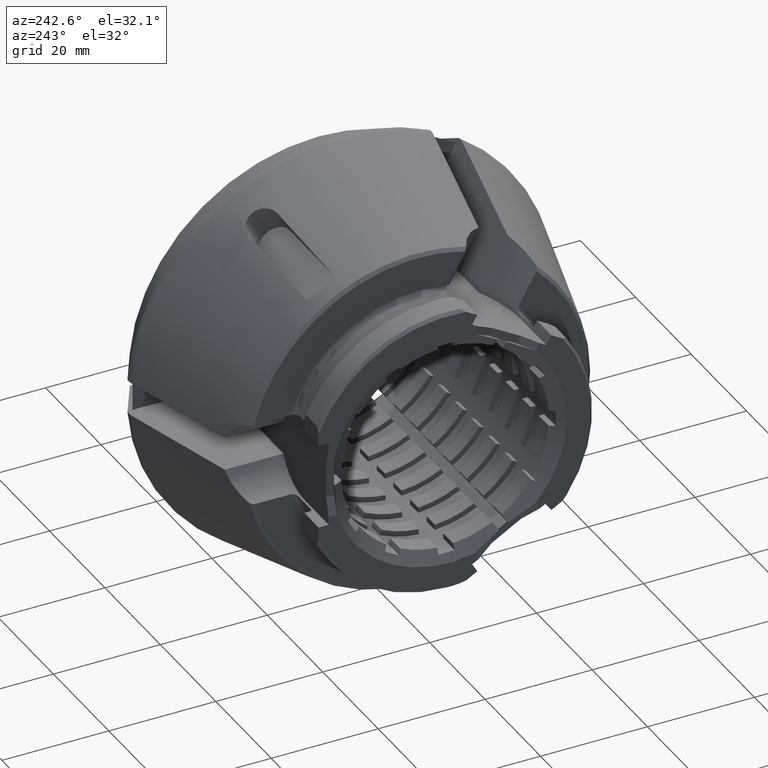
[diagram: clean part render]
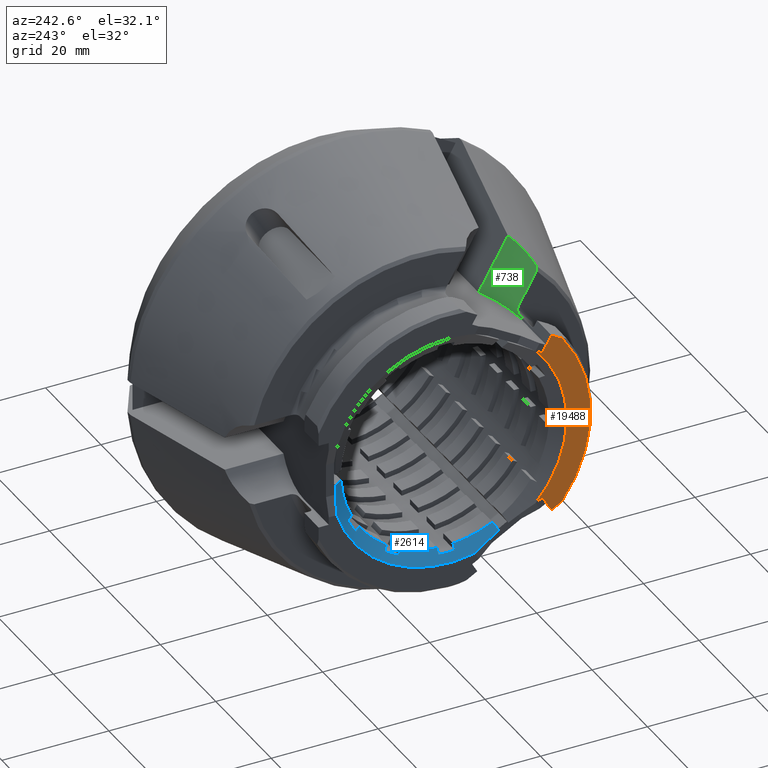
[diagram: same view with three faces highlighted in distinct colors, each labeled with its STEP entity id]
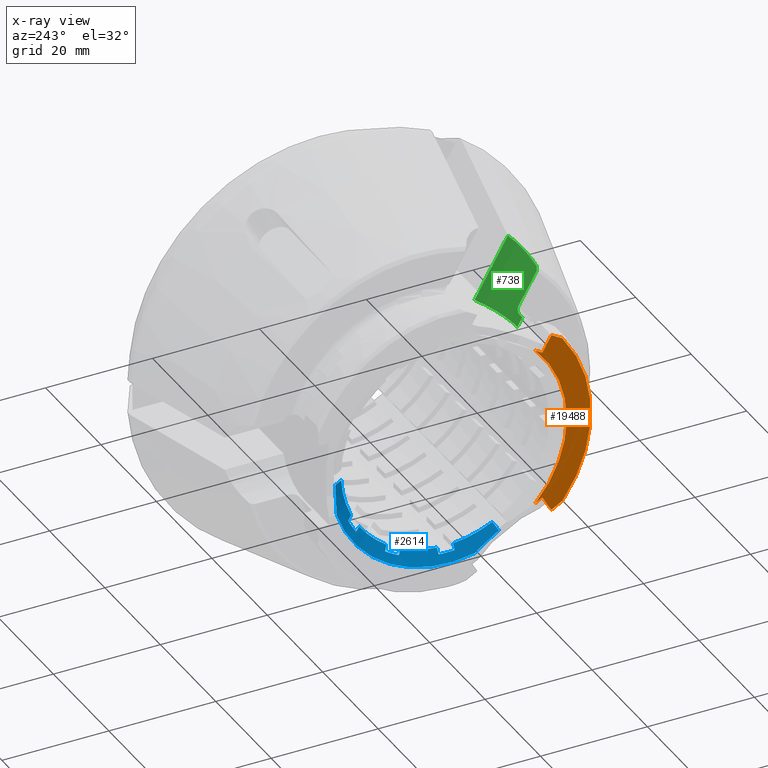
[diagram: x-ray of the same camera — body ghosted, the three highlighted faces saturated]
A machine part, auxiliary view with three faces highlighted in distinct colors.
The next image is the same camera in x-ray (body ghosted, the three faces saturated) — at least one of them is partly hidden behind the body in this view.
Their STEP definitions:

[orange] entity #19488 — the highlighted planar face has unit normal (-1, 0, 0).
#602 = EDGE_LOOP ( 'NONE', ( #12295, #10780, #12441, #12479, #12593, #2593, #10757, #11552 ) ) ;
#764 = CARTESIAN_POINT ( 'NONE',  ( -46.99999999999998600, -16.17890834580003900, -14.90781421732242000 ) ) ;
#869 = VECTOR ( 'NONE', #7783, 999.9999999999998900 ) ;
#1561 = AXIS2_PLACEMENT_3D ( 'NONE', #6029, #6014, #5994 ) ;
#1598 = VERTEX_POINT ( 'NONE', #17869 ) ;
#2081 = LINE ( 'NONE', #5327, #18268 ) ;
#2537 = PLANE ( 'NONE',  #17700 ) ;
#2593 = ORIENTED_EDGE ( 'NONE', *, *, #14526, .T. ) ;
#2817 = VERTEX_POINT ( 'NONE', #9530 ) ;
#2963 = LINE ( 'NONE', #18028, #6544 ) ;
#3525 = LINE ( 'NONE', #5955, #8055 ) ;
#3755 = CARTESIAN_POINT ( 'NONE',  ( -47.00000000000000000, 26.49999999999999300, 0.0000000000000000000 ) ) ;
#4096 = DIRECTION ( 'NONE',  ( 0.0000000000000000000, 0.0000000000000000000, 1.000000000000000000 ) ) ;
#5309 = DIRECTION ( 'NONE',  ( 0.0000000000000000000, 0.4999999999999920100, 0.8660254037844432600 ) ) ;
#5327 = CARTESIAN_POINT ( 'NONE',  ( -46.99999999999998600, -34.00965686030154000, -42.90645363002669700 ) ) ;
#5871 = DIRECTION ( 'NONE',  ( 0.0000000000000000000, 0.8660254037844432600, -0.4999999999999919500 ) ) ;
#5955 = CARTESIAN_POINT ( 'NONE',  ( -46.99999999999998600, -17.42820323027537600, -14.18653347947337600 ) ) ;
#5994 = DIRECTION ( 'NONE',  ( 0.0000000000000000000, 0.0000000000000000000, -1.000000000000000000 ) ) ;
#6014 = DIRECTION ( 'NONE',  ( 1.000000000000000000, -0.0000000000000000000, -0.0000000000000000000 ) ) ;
#6029 = CARTESIAN_POINT ( 'NONE',  ( -47.00000000000000000, 0.0000000000000000000, 0.0000000000000000000 ) ) ;
#6038 = CIRCLE ( 'NONE', #11858, 26.49999999999999300 ) ;
#6544 = VECTOR ( 'NONE', #17836, 999.9999999999998900 ) ;
#7529 = FACE_OUTER_BOUND ( 'NONE', #602, .T. ) ;
#7572 = CARTESIAN_POINT ( 'NONE',  ( -46.99999999999998600, -3.571796769724595100, 22.18653347947319400 ) ) ;
#7622 = EDGE_CURVE ( 'NONE', #16604, #15740, #2963, .T. ) ;
#7783 = DIRECTION ( 'NONE',  ( 0.0000000000000000000, -0.8660254037844363800, -0.5000000000000040000 ) ) ;
#8055 = VECTOR ( 'NONE', #5871, 1000.000000000000000 ) ;
#8366 = DIRECTION ( 'NONE',  ( 0.0000000000000000000, 0.5000000000000040000, -0.8660254037844363800 ) ) ;
#8413 = CARTESIAN_POINT ( 'NONE',  ( -46.99999999999998600, -34.00965686030223600, 42.90645363002640500 ) ) ;
#8656 = EDGE_CURVE ( 'NONE', #15740, #12825, #6038, .T. ) ;
#8728 = DIRECTION ( 'NONE',  ( 0.0000000000000000000, 0.0000000000000000000, -1.000000000000000000 ) ) ;
#8766 = DIRECTION ( 'NONE',  ( 1.000000000000000000, -0.0000000000000000000, -0.0000000000000000000 ) ) ;
#8786 = CARTESIAN_POINT ( 'NONE',  ( -46.99999999999999300, 0.0000000000000000000, 0.0000000000000000000 ) ) ;
#9010 = LINE ( 'NONE', #7572, #869 ) ;
#9530 = CARTESIAN_POINT ( 'NONE',  ( -46.99999999999998600, -17.42820323027537600, -14.18653347947337600 ) ) ;
#9570 = CARTESIAN_POINT ( 'NONE',  ( -47.00000000000000000, -21.15363054855407700, 15.96163884490810100 ) ) ;
#9757 = EDGE_CURVE ( 'NONE', #12825, #10372, #18567, .T. ) ;
#10372 = VERTEX_POINT ( 'NONE', #12932 ) ;
#10757 = ORIENTED_EDGE ( 'NONE', *, *, #14545, .F. ) ;
#10780 = ORIENTED_EDGE ( 'NONE', *, *, #8656, .F. ) ;
#11552 = ORIENTED_EDGE ( 'NONE', *, *, #14614, .F. ) ;
#11858 = AXIS2_PLACEMENT_3D ( 'NONE', #8786, #8766, #8728 ) ;
#12295 = ORIENTED_EDGE ( 'NONE', *, *, #9757, .F. ) ;
#12441 = ORIENTED_EDGE ( 'NONE', *, *, #7622, .F. ) ;
#12479 = ORIENTED_EDGE ( 'NONE', *, *, #14287, .T. ) ;
#12593 = ORIENTED_EDGE ( 'NONE', *, *, #14373, .F. ) ;
#12825 = VERTEX_POINT ( 'NONE', #16719 ) ;
#12932 = CARTESIAN_POINT ( 'NONE',  ( -46.99999999999998600, -19.12820323027535000, -17.13101985234048600 ) ) ;
#12976 = CARTESIAN_POINT ( 'NONE',  ( -47.00000000000000000, -19.12820323027559900, 17.13101985234021600 ) ) ;
#13224 = DIRECTION ( 'NONE',  ( -1.000000000000000000, 0.0000000000000000000, 0.0000000000000000000 ) ) ;
#14048 = VECTOR ( 'NONE', #8366, 999.9999999999998900 ) ;
#14128 = VECTOR ( 'NONE', #18995, 1000.000000000000000 ) ;
#14287 = EDGE_CURVE ( 'NONE', #16604, #16191, #18502, .T. ) ;
#14373 = EDGE_CURVE ( 'NONE', #1598, #16191, #9010, .T. ) ;
#14526 = EDGE_CURVE ( 'NONE', #1598, #15891, #19142, .T. ) ;
#14545 = EDGE_CURVE ( 'NONE', #2817, #15891, #3525, .T. ) ;
#14614 = EDGE_CURVE ( 'NONE', #10372, #2817, #2081, .T. ) ;
#15740 = VERTEX_POINT ( 'NONE', #9570 ) ;
#15891 = VERTEX_POINT ( 'NONE', #764 ) ;
#16191 = VERTEX_POINT ( 'NONE', #17522 ) ;
#16604 = VERTEX_POINT ( 'NONE', #12976 ) ;
#16719 = CARTESIAN_POINT ( 'NONE',  ( -47.00000000000000000, -21.15363054855386700, -15.96163884490838400 ) ) ;
#17522 = CARTESIAN_POINT ( 'NONE',  ( -46.99999999999998600, -17.42820323027557100, 14.18653347947313200 ) ) ;
#17700 = AXIS2_PLACEMENT_3D ( 'NONE', #3755, #13224, #4096 ) ;
#17836 = DIRECTION ( 'NONE',  ( 0.0000000000000000000, -0.8660254037844363800, -0.5000000000000040000 ) ) ;
#17869 = CARTESIAN_POINT ( 'NONE',  ( -46.99999999999998600, -16.17890834580025200, 14.90781421732218700 ) ) ;
#18028 = CARTESIAN_POINT ( 'NONE',  ( -47.00000000000000000, -2.188506604906676600, 26.91115825898766200 ) ) ;
#18268 = VECTOR ( 'NONE', #5309, 1000.000000000000100 ) ;
#18502 = LINE ( 'NONE', #8413, #14048 ) ;
#18567 = LINE ( 'NONE', #18980, #14128 ) ;
#18980 = CARTESIAN_POINT ( 'NONE',  ( -47.00000000000000000, -22.21149339509331000, -15.35088144569314600 ) ) ;
#18995 = DIRECTION ( 'NONE',  ( 0.0000000000000000000, 0.8660254037844432600, -0.4999999999999919500 ) ) ;
#19142 = CIRCLE ( 'NONE', #1561, 21.99999999999999300 ) ;
#19488 = ADVANCED_FACE ( 'NONE', ( #7529 ), #2537, .T. ) ;

[blue] entity #2614 — the highlighted conical surface has half-angle 60 deg.
#455 = CARTESIAN_POINT ( 'NONE',  ( -46.43638838185032100, -9.633974596215592700, -18.68653347947319800 ) ) ;
#505 = ORIENTED_EDGE ( 'NONE', *, *, #9176, .T. ) ;
#610 = CARTESIAN_POINT ( 'NONE',  ( -46.10222033141014500, 0.0000000000000000000, -20.44499999999999700 ) ) ;
#670 = VERTEX_POINT ( 'NONE', #12581 ) ;
#1064 = ORIENTED_EDGE ( 'NONE', *, *, #10730, .F. ) ;
#1116 = CARTESIAN_POINT ( 'NONE',  ( -45.52487006222052200, 16.03968489132538600, -10.99256719729237200 ) ) ;
#1168 = B_SPLINE_CURVE_WITH_KNOTS ( 'NONE', 3,
 ( #6431, #6402, #6123, #6103, #6085, #6062, #6037 ),
 .UNSPECIFIED., .F., .F.,
 ( 4, 3, 4 ),
 ( 0.002509571420992501200, 0.003437399244691651800, 0.003666733965419723900 ),
 .UNSPECIFIED. ) ;
#1182 = CARTESIAN_POINT ( 'NONE',  ( -45.71729899592697400, 16.32919095618764900, -11.15971360177263000 ) ) ;
#1275 = CARTESIAN_POINT ( 'NONE',  ( -45.90975012257960900, 16.61868595826436800, -11.32685361915067700 ) ) ;
#1279 = CARTESIAN_POINT ( 'NONE',  ( -46.10222033141014500, 16.90817144412183700, -11.49398814233697600 ) ) ;
#1507 = CARTESIAN_POINT ( 'NONE',  ( -46.10222033141014500, 11.49398814233696300, -16.90817144412184100 ) ) ;
#1530 = CARTESIAN_POINT ( 'NONE',  ( -45.90975012257960900, 11.32685361915066700, -16.61868595826437600 ) ) ;
#1686 = CARTESIAN_POINT ( 'NONE',  ( -45.52487006222052200, 10.99256719729236300, -16.03968489132539300 ) ) ;
#1700 = CARTESIAN_POINT ( 'NONE',  ( -45.52487006222052200, 17.53968489132539000, -8.394490985939056000 ) ) ;
#1706 = AXIS2_PLACEMENT_3D ( 'NONE', #7340, #7338, #7319 ) ;
#1956 = CARTESIAN_POINT ( 'NONE',  ( -45.71729899592697400, 11.15971360177261900, -16.32919095618765600 ) ) ;
#2054 = ORIENTED_EDGE ( 'NONE', *, *, #11976, .F. ) ;
#2166 = CARTESIAN_POINT ( 'NONE',  ( -46.43638838185032800, 21.00000000000001100, -1.000000000000000000 ) ) ;
#2198 = CIRCLE ( 'NONE', #14265, 19.44499999999999300 ) ;
#2512 = ORIENTED_EDGE ( 'NONE', *, *, #10656, .F. ) ;
#2528 = ORIENTED_EDGE ( 'NONE', *, *, #14385, .F. ) ;
#2605 = ORIENTED_EDGE ( 'NONE', *, *, #10600, .F. ) ;
#2614 = ADVANCED_FACE ( 'NONE', ( #17809 ), #17568, .F. ) ;
#2954 = CARTESIAN_POINT ( 'NONE',  ( -46.10222033141014500, 18.40817144412183400, -8.895911930983656300 ) ) ;
#3383 = ORIENTED_EDGE ( 'NONE', *, *, #11105, .F. ) ;
#3486 = CARTESIAN_POINT ( 'NONE',  ( -45.52487006222052200, 8.394490985939045300, -17.53968489132539300 ) ) ;
#3505 = CARTESIAN_POINT ( 'NONE',  ( -45.71729899592697400, 8.561637390419301500, -17.82919095618765200 ) ) ;
#3631 = B_SPLINE_CURVE_WITH_KNOTS ( 'NONE', 3,
 ( #3801, #3868, #3505, #3486 ),
 .UNSPECIFIED., .F., .F.,
 ( 4, 4 ),
 ( 2.664871811173115700E-007, 0.001157429047001911000 ),
 .UNSPECIFIED. ) ;
#3801 = CARTESIAN_POINT ( 'NONE',  ( -46.10222033141014500, 8.895911930983647400, -18.40817144412184400 ) ) ;
#3868 = CARTESIAN_POINT ( 'NONE',  ( -45.90975012257960900, 8.728777407797348800, -18.11868595826437600 ) ) ;
#3890 = B_SPLINE_CURVE_WITH_KNOTS ( 'NONE', 3,
 ( #1686, #1956, #1530, #1507 ),
 .UNSPECIFIED., .F., .F.,
 ( 4, 4 ),
 ( 2.664682339458158100E-007, 0.001157429028054731000 ),
 .UNSPECIFIED. ) ;
#3944 = EDGE_CURVE ( 'NONE', #16912, #670, #10298, .T. ) ;
#4059 = ORIENTED_EDGE ( 'NONE', *, *, #10811, .F. ) ;
#4146 = ORIENTED_EDGE ( 'NONE', *, *, #10916, .F. ) ;
#4279 = VERTEX_POINT ( 'NONE', #9949 ) ;
#4320 = VERTEX_POINT ( 'NONE', #9500 ) ;
#4403 = EDGE_CURVE ( 'NONE', #4320, #10015, #7740, .T. ) ;
#4558 = ORIENTED_EDGE ( 'NONE', *, *, #10488, .F. ) ;
#4809 = EDGE_CURVE ( 'NONE', #16100, #7697, #5497, .T. ) ;
#4976 = CIRCLE ( 'NONE', #1706, 20.44499999999999700 ) ;
#5158 = VERTEX_POINT ( 'NONE', #16266 ) ;
#5442 = ORIENTED_EDGE ( 'NONE', *, *, #3944, .T. ) ;
#5497 = CIRCLE ( 'NONE', #10083, 19.44499999999999300 ) ;
#5702 = ORIENTED_EDGE ( 'NONE', *, *, #7307, .F. ) ;
#5708 = ORIENTED_EDGE ( 'NONE', *, *, #10429, .F. ) ;
#6037 = CARTESIAN_POINT ( 'NONE',  ( -46.10222033141014500, 1.500000000000007100, -20.38990007332061100 ) ) ;
#6062 = CARTESIAN_POINT ( 'NONE',  ( -46.06407521336202400, 1.500000000000000400, -20.32365225080725000 ) ) ;
#6085 = CARTESIAN_POINT ( 'NONE',  ( -46.02593084676011200, 1.500000000000000400, -20.25740399560944000 ) ) ;
#6103 = CARTESIAN_POINT ( 'NONE',  ( -45.98778725393737000, 1.500000000000000400, -20.19115529490339600 ) ) ;
#6123 = CARTESIAN_POINT ( 'NONE',  ( -45.83346833375820500, 1.500000000000000200, -19.92313051800998700 ) ) ;
#6232 = AXIS2_PLACEMENT_3D ( 'NONE', #8465, #8461, #8434 ) ;
#6402 = CARTESIAN_POINT ( 'NONE',  ( -45.67916205813366300, 1.500000000000000200, -19.65509846033761200 ) ) ;
#6431 = CARTESIAN_POINT ( 'NONE',  ( -45.52487006222052200, 1.500000000000000000, -19.38705818323141400 ) ) ;
#6437 = CIRCLE ( 'NONE', #10243, 20.44499999999999700 ) ;
#6450 = CARTESIAN_POINT ( 'NONE',  ( -47.00000000000000000, 0.0000000000000000000, 0.0000000000000000000 ) ) ;
#6462 = VERTEX_POINT ( 'NONE', #455 ) ;
#6941 = DIRECTION ( 'NONE',  ( 0.0000000000000000000, 0.0000000000000000000, 1.000000000000000000 ) ) ;
#6961 = DIRECTION ( 'NONE',  ( -1.000000000000000000, 0.0000000000000000000, 0.0000000000000000000 ) ) ;
#6991 = CARTESIAN_POINT ( 'NONE',  ( -46.10222033141014500, 0.0000000000000000000, 0.0000000000000000000 ) ) ;
#7106 = DIRECTION ( 'NONE',  ( 0.0000000000000000000, 0.0000000000000000000, -1.000000000000000000 ) ) ;
#7111 = DIRECTION ( 'NONE',  ( 1.000000000000000000, -0.0000000000000000000, -0.0000000000000000000 ) ) ;
#7122 = CARTESIAN_POINT ( 'NONE',  ( -45.52487006222051500, 0.0000000000000000000, 0.0000000000000000000 ) ) ;
#7173 = CARTESIAN_POINT ( 'NONE',  ( -46.10222033141014500, 1.500000000000007100, -20.38990007332061100 ) ) ;
#7307 = EDGE_CURVE ( 'NONE', #19013, #11392, #16160, .T. ) ;
#7319 = DIRECTION ( 'NONE',  ( 0.0000000000000000000, 0.0000000000000000000, 1.000000000000000000 ) ) ;
#7338 = DIRECTION ( 'NONE',  ( -1.000000000000000000, 0.0000000000000000000, 0.0000000000000000000 ) ) ;
#7340 = CARTESIAN_POINT ( 'NONE',  ( -46.10222033141014500, 0.0000000000000000000, 0.0000000000000000000 ) ) ;
#7351 = CIRCLE ( 'NONE', #7523, 20.44499999999999700 ) ;
#7446 = CARTESIAN_POINT ( 'NONE',  ( -46.99999999999998600, 21.00000000000000000, -6.557438524301968400 ) ) ;
#7523 = AXIS2_PLACEMENT_3D ( 'NONE', #14797, #14794, #14775 ) ;
#7697 = VERTEX_POINT ( 'NONE', #12604 ) ;
#7717 = CARTESIAN_POINT ( 'NONE',  ( -45.52487006222052200, -1.500000000000000000, -19.38705818323141700 ) ) ;
#7740 = CIRCLE ( 'NONE', #14841, 19.44499999999999300 ) ;
#7745 = CARTESIAN_POINT ( 'NONE',  ( -45.67916205813366300, -1.500000000000000200, -19.65509846033761200 ) ) ;
#7759 = CARTESIAN_POINT ( 'NONE',  ( -45.83346833375820500, -1.500000000000000400, -19.92313051800998400 ) ) ;
#7787 = CARTESIAN_POINT ( 'NONE',  ( -45.98778725393737000, -1.500000000000000700, -20.19115529490339300 ) ) ;
#7813 = CARTESIAN_POINT ( 'NONE',  ( -46.02593084676011200, -1.500000000000000700, -20.25740399560944000 ) ) ;
#7854 = CIRCLE ( 'NONE', #10574, 21.99999999999999300 ) ;
#7898 = CARTESIAN_POINT ( 'NONE',  ( -46.10222033141014500, -1.500000000000000900, -20.38990007332061400 ) ) ;
#7987 = EDGE_LOOP ( 'NONE', ( #5708, #505, #13207, #4558, #2605, #2512, #9429, #18701, #1064, #4059, #5702, #4146, #12901, #3383, #2528, #9832, #5442, #11454, #2054 ) ) ;
#8040 = CARTESIAN_POINT ( 'NONE',  ( -46.06407521336202400, -1.500000000000000900, -20.32365225080725000 ) ) ;
#8062 = CARTESIAN_POINT ( 'NONE',  ( -46.43638838185032100, -9.633974596215592700, -18.68653347947319800 ) ) ;
#8086 = CARTESIAN_POINT ( 'NONE',  ( -46.13252794836009900, -9.370525553575195200, -18.23022635241466800 ) ) ;
#8239 = CARTESIAN_POINT ( 'NONE',  ( -45.52487006222051500, -8.843609308706048100, -17.31758064496793300 ) ) ;
#8294 = CARTESIAN_POINT ( 'NONE',  ( -45.82868680232291300, -9.107070949057632700, -17.77390959190230300 ) ) ;
#8434 = DIRECTION ( 'NONE',  ( 0.0000000000000000000, 0.0000000000000000000, 1.000000000000000000 ) ) ;
#8461 = DIRECTION ( 'NONE',  ( -1.000000000000000000, 0.0000000000000000000, 0.0000000000000000000 ) ) ;
#8465 = CARTESIAN_POINT ( 'NONE',  ( -46.10222033141014500, 0.0000000000000000000, 0.0000000000000000000 ) ) ;
#8805 = CARTESIAN_POINT ( 'NONE',  ( -46.99999999999998600, -4.821091654199551400, -21.46525274162424400 ) ) ;
#8832 = CARTESIAN_POINT ( 'NONE',  ( -46.84180731168945000, -5.617188894745530600, -21.00562578549393000 ) ) ;
#8878 = CARTESIAN_POINT ( 'NONE',  ( -46.71332424130640200, -6.416621899889194400, -20.54407292477517200 ) ) ;
#8935 = CARTESIAN_POINT ( 'NONE',  ( -46.52323686121293600, -8.022996986958768100, -19.61663183583607400 ) ) ;
#9001 = CARTESIAN_POINT ( 'NONE',  ( -46.43638838185032100, -9.633974596215592700, -18.68653347947319800 ) ) ;
#9121 = VERTEX_POINT ( 'NONE', #1700 ) ;
#9173 = CARTESIAN_POINT ( 'NONE',  ( -46.46191249841980700, -8.829053864866267500, -19.15125468039403200 ) ) ;
#9176 = EDGE_CURVE ( 'NONE', #9121, #4279, #2198, .T. ) ;
#9308 = DIRECTION ( 'NONE',  ( -1.000000000000000000, 0.0000000000000000000, 0.0000000000000000000 ) ) ;
#9394 = B_SPLINE_CURVE_WITH_KNOTS ( 'NONE', 3,
 ( #7898, #8040, #7813, #7787, #7759, #7745, #7717 ),
 .UNSPECIFIED., .F., .F.,
 ( 4, 3, 4 ),
 ( 0.003208064489463481500, 0.003437399212349354100, 0.004365227044778382600 ),
 .UNSPECIFIED. ) ;
#9429 = ORIENTED_EDGE ( 'NONE', *, *, #10701, .F. ) ;
#9499 = DIRECTION ( 'NONE',  ( 0.0000000000000000000, 0.0000000000000000000, -1.000000000000000000 ) ) ;
#9500 = CARTESIAN_POINT ( 'NONE',  ( -45.52487006222052200, 1.500000000000000000, -19.38705818323141400 ) ) ;
#9542 = DIRECTION ( 'NONE',  ( 1.000000000000000000, -0.0000000000000000000, -0.0000000000000000000 ) ) ;
#9547 = CARTESIAN_POINT ( 'NONE',  ( -47.00000000000000000, 0.0000000000000000000, 0.0000000000000000000 ) ) ;
#9719 = CARTESIAN_POINT ( 'NONE',  ( -45.52487006222052200, 10.99256719729236300, -16.03968489132539300 ) ) ;
#9832 = ORIENTED_EDGE ( 'NONE', *, *, #11276, .F. ) ;
#9949 = CARTESIAN_POINT ( 'NONE',  ( -45.52487006222051500, 19.41926942498094600, -1.000000000000000000 ) ) ;
#10015 = VERTEX_POINT ( 'NONE', #16742 ) ;
#10039 = VERTEX_POINT ( 'NONE', #16793 ) ;
#10083 = AXIS2_PLACEMENT_3D ( 'NONE', #15482, #15412, #15209 ) ;
#10099 = CARTESIAN_POINT ( 'NONE',  ( -46.10222033141014500, -1.500000000000000900, -20.38990007332061400 ) ) ;
#10240 = VERTEX_POINT ( 'NONE', #14020 ) ;
#10243 = AXIS2_PLACEMENT_3D ( 'NONE', #6991, #6961, #6941 ) ;
#10249 = B_SPLINE_CURVE_WITH_KNOTS ( 'NONE', 3,
 ( #1279, #1275, #1182, #1116 ),
 .UNSPECIFIED., .F., .F.,
 ( 4, 4 ),
 ( 2.664871811173115700E-007, 0.001157429047001909300 ),
 .UNSPECIFIED. ) ;
#10298 = CIRCLE ( 'NONE', #19600, 19.44499999999999300 ) ;
#10429 = EDGE_CURVE ( 'NONE', #9121, #14818, #15681, .T. ) ;
#10453 = EDGE_CURVE ( 'NONE', #11224, #4279, #16376, .T. ) ;
#10488 = EDGE_CURVE ( 'NONE', #18031, #11224, #17278, .T. ) ;
#10574 = AXIS2_PLACEMENT_3D ( 'NONE', #9547, #9542, #9499 ) ;
#10600 = EDGE_CURVE ( 'NONE', #10240, #18031, #7854, .T. ) ;
#10656 = EDGE_CURVE ( 'NONE', #6462, #10240, #14689, .T. ) ;
#10701 = EDGE_CURVE ( 'NONE', #16100, #6462, #14823, .T. ) ;
#10730 = EDGE_CURVE ( 'NONE', #13127, #7697, #9394, .T. ) ;
#10811 = EDGE_CURVE ( 'NONE', #11392, #13127, #6437, .T. ) ;
#10916 = EDGE_CURVE ( 'NONE', #4320, #19013, #1168, .T. ) ;
#11105 = EDGE_CURVE ( 'NONE', #10039, #10015, #3631, .T. ) ;
#11224 = VERTEX_POINT ( 'NONE', #2166 ) ;
#11239 = CARTESIAN_POINT ( 'NONE',  ( -46.43638838185032800, 21.00000000000001100, -1.000000000000000000 ) ) ;
#11255 = CARTESIAN_POINT ( 'NONE',  ( -46.46195977915910900, 21.00000000000001100, -1.931164096058720600 ) ) ;
#11276 = EDGE_CURVE ( 'NONE', #16912, #5158, #3890, .T. ) ;
#11277 = CARTESIAN_POINT ( 'NONE',  ( -46.52387122884457700, 21.00000000000000700, -2.868237511783650700 ) ) ;
#11280 = CARTESIAN_POINT ( 'NONE',  ( -46.71429821536602800, 21.00000000000001100, -4.722716657572231500 ) ) ;
#11299 = CARTESIAN_POINT ( 'NONE',  ( -46.99999999999998600, 21.00000000000000000, -6.557438524301968400 ) ) ;
#11305 = CARTESIAN_POINT ( 'NONE',  ( -46.84265047176809600, 21.00000000000000700, -5.643084195006783200 ) ) ;
#11319 = EDGE_CURVE ( 'NONE', #16579, #670, #10249, .T. ) ;
#11392 = VERTEX_POINT ( 'NONE', #610 ) ;
#11454 = ORIENTED_EDGE ( 'NONE', *, *, #11319, .F. ) ;
#11530 = CARTESIAN_POINT ( 'NONE',  ( -45.52487006222051500, 19.41926942498094600, -1.000000000000000000 ) ) ;
#11560 = CARTESIAN_POINT ( 'NONE',  ( -45.56870657253500000, 19.49529709159899200, -1.000000000000000000 ) ) ;
#11576 = CARTESIAN_POINT ( 'NONE',  ( -45.61254359375562500, 19.57132446363770100, -1.000000000000000000 ) ) ;
#11581 = CARTESIAN_POINT ( 'NONE',  ( -45.65638110832183100, 19.64735155120913700, -1.000000000000000000 ) ) ;
#11604 = CARTESIAN_POINT ( 'NONE',  ( -45.91636729403740000, 20.09824373121419300, -1.000000000000000000 ) ) ;
#11668 = CARTESIAN_POINT ( 'NONE',  ( -46.43638838185032800, 21.00000000000001100, -1.000000000000000000 ) ) ;
#11694 = CARTESIAN_POINT ( 'NONE',  ( -46.17637076298590400, 20.54912594593090700, -1.000000000000000000 ) ) ;
#11976 = EDGE_CURVE ( 'NONE', #14818, #16579, #7351, .T. ) ;
#12132 = CARTESIAN_POINT ( 'NONE',  ( -46.10222033141014500, 18.40817144412183400, -8.895911930983656300 ) ) ;
#12136 = CARTESIAN_POINT ( 'NONE',  ( -45.90975012257960900, 18.11868595826436800, -8.728777407797357700 ) ) ;
#12181 = CARTESIAN_POINT ( 'NONE',  ( -45.52487006222052200, 17.53968489132539000, -8.394490985939056000 ) ) ;
#12344 = CARTESIAN_POINT ( 'NONE',  ( -45.71729899592697400, 17.82919095618765200, -8.561637390419312200 ) ) ;
#12581 = CARTESIAN_POINT ( 'NONE',  ( -45.52487006222052200, 16.03968489132538600, -10.99256719729237200 ) ) ;
#12604 = CARTESIAN_POINT ( 'NONE',  ( -45.52487006222052200, -1.500000000000000000, -19.38705818323141700 ) ) ;
#12901 = ORIENTED_EDGE ( 'NONE', *, *, #4403, .T. ) ;
#13127 = VERTEX_POINT ( 'NONE', #10099 ) ;
#13207 = ORIENTED_EDGE ( 'NONE', *, *, #10453, .F. ) ;
#13543 = CARTESIAN_POINT ( 'NONE',  ( -46.10222033141014500, 16.90817144412183700, -11.49398814233697600 ) ) ;
#13868 = DIRECTION ( 'NONE',  ( 0.0000000000000000000, 0.0000000000000000000, 1.000000000000000000 ) ) ;
#14020 = CARTESIAN_POINT ( 'NONE',  ( -46.99999999999998600, -4.821091654199551400, -21.46525274162424400 ) ) ;
#14265 = AXIS2_PLACEMENT_3D ( 'NONE', #19386, #19344, #19366 ) ;
#14385 = EDGE_CURVE ( 'NONE', #5158, #10039, #4976, .T. ) ;
#14689 = B_SPLINE_CURVE_WITH_KNOTS ( 'NONE', 3,
 ( #9001, #9173, #8935, #8878, #8832, #8805 ),
 .UNSPECIFIED., .F., .F.,
 ( 4, 2, 4 ),
 ( 0.004150230940107446300, 0.006938558145632487000, 0.009726885351157527800 ),
 .UNSPECIFIED. ) ;
#14775 = DIRECTION ( 'NONE',  ( 0.0000000000000000000, 0.0000000000000000000, 1.000000000000000000 ) ) ;
#14794 = DIRECTION ( 'NONE',  ( -1.000000000000000000, 0.0000000000000000000, 0.0000000000000000000 ) ) ;
#14797 = CARTESIAN_POINT ( 'NONE',  ( -46.10222033141014500, 0.0000000000000000000, 0.0000000000000000000 ) ) ;
#14818 = VERTEX_POINT ( 'NONE', #2954 ) ;
#14823 = B_SPLINE_CURVE_WITH_KNOTS ( 'NONE', 3,
 ( #8239, #8294, #8086, #8062 ),
 .UNSPECIFIED., .F., .F.,
 ( 4, 4 ),
 ( 2.665784925629610000E-007, 0.001824978829183283800 ),
 .UNSPECIFIED. ) ;
#14841 = AXIS2_PLACEMENT_3D ( 'NONE', #7122, #7111, #7106 ) ;
#15209 = DIRECTION ( 'NONE',  ( 0.0000000000000000000, 0.0000000000000000000, -1.000000000000000000 ) ) ;
#15412 = DIRECTION ( 'NONE',  ( 1.000000000000000000, -0.0000000000000000000, -0.0000000000000000000 ) ) ;
#15482 = CARTESIAN_POINT ( 'NONE',  ( -45.52487006222051500, 0.0000000000000000000, 0.0000000000000000000 ) ) ;
#15681 = B_SPLINE_CURVE_WITH_KNOTS ( 'NONE', 3,
 ( #12181, #12344, #12136, #12132 ),
 .UNSPECIFIED., .F., .F.,
 ( 4, 4 ),
 ( 2.664682339458158100E-007, 0.001157429028054731000 ),
 .UNSPECIFIED. ) ;
#16100 = VERTEX_POINT ( 'NONE', #18410 ) ;
#16157 = DIRECTION ( 'NONE',  ( 0.0000000000000000000, 0.0000000000000000000, -1.000000000000000000 ) ) ;
#16160 = CIRCLE ( 'NONE', #6232, 20.44499999999999700 ) ;
#16175 = DIRECTION ( 'NONE',  ( 1.000000000000000000, -0.0000000000000000000, -0.0000000000000000000 ) ) ;
#16203 = CARTESIAN_POINT ( 'NONE',  ( -45.52487006222051500, 0.0000000000000000000, 0.0000000000000000000 ) ) ;
#16266 = CARTESIAN_POINT ( 'NONE',  ( -46.10222033141014500, 11.49398814233696300, -16.90817144412184100 ) ) ;
#16376 = B_SPLINE_CURVE_WITH_KNOTS ( 'NONE', 3,
 ( #11668, #11694, #11604, #11581, #11576, #11560, #11530 ),
 .UNSPECIFIED., .F., .F.,
 ( 4, 3, 4 ),
 ( 0.002388514577984435500, 0.003949946346395489700, 0.004213226826452014900 ),
 .UNSPECIFIED. ) ;
#16579 = VERTEX_POINT ( 'NONE', #13543 ) ;
#16634 = AXIS2_PLACEMENT_3D ( 'NONE', #6450, #9308, #13868 ) ;
#16742 = CARTESIAN_POINT ( 'NONE',  ( -45.52487006222052200, 8.394490985939045300, -17.53968489132539300 ) ) ;
#16793 = CARTESIAN_POINT ( 'NONE',  ( -46.10222033141014500, 8.895911930983647400, -18.40817144412184400 ) ) ;
#16912 = VERTEX_POINT ( 'NONE', #9719 ) ;
#17278 = B_SPLINE_CURVE_WITH_KNOTS ( 'NONE', 3,
 ( #11299, #11305, #11280, #11277, #11255, #11239 ),
 .UNSPECIFIED., .F., .F.,
 ( 4, 2, 4 ),
 ( 0.008069595658258108300, 0.01085136548806135000, 0.01363313531786459300 ),
 .UNSPECIFIED. ) ;
#17568 = CONICAL_SURFACE ( 'NONE', #16634, 21.99999999999999300, 1.047197551196600100 ) ;
#17809 = FACE_OUTER_BOUND ( 'NONE', #7987, .T. ) ;
#18031 = VERTEX_POINT ( 'NONE', #7446 ) ;
#18410 = CARTESIAN_POINT ( 'NONE',  ( -45.52487006222051500, -8.843609308706048100, -17.31758064496793300 ) ) ;
#18701 = ORIENTED_EDGE ( 'NONE', *, *, #4809, .T. ) ;
#19013 = VERTEX_POINT ( 'NONE', #7173 ) ;
#19344 = DIRECTION ( 'NONE',  ( 1.000000000000000000, -0.0000000000000000000, -0.0000000000000000000 ) ) ;
#19366 = DIRECTION ( 'NONE',  ( 0.0000000000000000000, 0.0000000000000000000, -1.000000000000000000 ) ) ;
#19386 = CARTESIAN_POINT ( 'NONE',  ( -45.52487006222051500, 0.0000000000000000000, 0.0000000000000000000 ) ) ;
#19600 = AXIS2_PLACEMENT_3D ( 'NONE', #16203, #16175, #16157 ) ;

[green] entity #738 — the highlighted cylindrical surface (partial cylindrical patch) has radius 8 mm, axis along (0, 0.5, -0.866).
#738 = ADVANCED_FACE ( 'NONE', ( #17585 ), #17156, .F. ) ;
#1320 = CARTESIAN_POINT ( 'NONE',  ( -37.00000000000000000, -18.33098469043606500, 15.87568897021475100 ) ) ;
#1334 = CARTESIAN_POINT ( 'NONE',  ( -35.51703708685545300, -22.29768903052275100, 23.41087885680820000 ) ) ;
#1350 = DIRECTION ( 'NONE',  ( 0.0000000000000000000, 0.5000000000000040000, -0.8660254037844363800 ) ) ;
#1356 = ORIENTED_EDGE ( 'NONE', *, *, #11346, .F. ) ;
#1457 = CARTESIAN_POINT ( 'NONE',  ( -35.99999999999999300, -33.78965756252610200, 43.03347028381898600 ) ) ;
#1551 = CARTESIAN_POINT ( 'NONE',  ( -35.99999999999999300, -18.72446895121471000, 16.93979818341990700 ) ) ;
#1600 = CIRCLE ( 'NONE', #2252, 8.000000000000005300 ) ;
#2030 = VERTEX_POINT ( 'NONE', #2378 ) ;
#2102 = LINE ( 'NONE', #10023, #12869 ) ;
#2252 = AXIS2_PLACEMENT_3D ( 'NONE', #10292, #10226, #10209 ) ;
#2266 = B_SPLINE_CURVE_WITH_KNOTS ( 'NONE', 3,
 ( #12337, #11798, #11771, #11706, #11644, #11620, #11574, #11546, #11525, #11473 ),
 .UNSPECIFIED., .F., .F.,
 ( 4, 2, 2, 2, 4 ),
 ( 0.0009050040789083472500, 0.002674022955238913900, 0.004443041831569480800, 0.006212060707900046900, 0.007981079584230613800 ),
 .UNSPECIFIED. ) ;
#2378 = CARTESIAN_POINT ( 'NONE',  ( -37.99999999999999300, -17.42820323027557800, 14.18653347947312900 ) ) ;
#2784 = VERTEX_POINT ( 'NONE', #3706 ) ;
#3600 = CARTESIAN_POINT ( 'NONE',  ( -37.00000000000000000, -18.33098469043606500, 15.87568897021475100 ) ) ;
#3625 = CARTESIAN_POINT ( 'NONE',  ( -36.86111738371156600, -18.31886184144845900, 15.88968670975275000 ) ) ;
#3642 = CARTESIAN_POINT ( 'NONE',  ( -36.72747366255530500, -18.31977996516869200, 15.93256898425962700 ) ) ;
#3646 = CARTESIAN_POINT ( 'NONE',  ( -36.48413118814013200, -18.34501075562515000, 16.06240498441107800 ) ) ;
#3663 = CARTESIAN_POINT ( 'NONE',  ( -36.37596889600914100, -18.36918772572715100, 16.14843147986655900 ) ) ;
#3689 = CARTESIAN_POINT ( 'NONE',  ( -36.10543416725382600, -18.47335335178069100, 16.44754684642302000 ) ) ;
#3706 = CARTESIAN_POINT ( 'NONE',  ( -37.99999999999999300, -18.37440893347696000, 15.82540983182934400 ) ) ;
#3761 = CARTESIAN_POINT ( 'NONE',  ( -35.99999999999999300, -18.58554414016252200, 16.69917335224555200 ) ) ;
#3777 = B_SPLINE_CURVE_WITH_KNOTS ( 'NONE', 3,
 ( #16503, #3761, #3689, #3663, #3646, #3642, #3625, #3600 ),
 .UNSPECIFIED., .F., .F.,
 ( 4, 2, 2, 4 ),
 ( 0.001582372897019633300, 0.002410330127860091500, 0.002824308743280319400, 0.003238287358700547000 ),
 .UNSPECIFIED. ) ;
#4153 = CARTESIAN_POINT ( 'NONE',  ( -35.99999999999999300, -22.07825753017238700, 22.74873040001876800 ) ) ;
#5674 = VERTEX_POINT ( 'NONE', #4153 ) ;
#7155 = VECTOR ( 'NONE', #17788, 999.9999999999998900 ) ;
#7581 = CARTESIAN_POINT ( 'NONE',  ( -30.64625945521600400, -13.22798002192106800, 16.61153347947316300 ) ) ;
#8298 = VERTEX_POINT ( 'NONE', #15085 ) ;
#8338 = VECTOR ( 'NONE', #1350, 999.9999999999998900 ) ;
#9050 = CARTESIAN_POINT ( 'NONE',  ( -37.99999999999999300, -18.37440893347696000, 15.82540983182934400 ) ) ;
#9067 = CARTESIAN_POINT ( 'NONE',  ( -37.66482017615279400, -18.37440893347697100, 15.82540983182936100 ) ) ;
#9109 = VERTEX_POINT ( 'NONE', #1320 ) ;
#9126 = CARTESIAN_POINT ( 'NONE',  ( -37.00000000000000000, -18.33098469043606500, 15.87568897021475100 ) ) ;
#9150 = CARTESIAN_POINT ( 'NONE',  ( -37.33149445166634500, -18.35992032892810100, 15.84227821574603600 ) ) ;
#9733 = DIRECTION ( 'NONE',  ( 0.0000000000000000000, 0.5000000000000040000, -0.8660254037844363800 ) ) ;
#10023 = CARTESIAN_POINT ( 'NONE',  ( -37.99999999999999300, -34.00965686030224300, 42.90645363002640500 ) ) ;
#10209 = DIRECTION ( 'NONE',  ( 0.0000000000000000000, -0.8660254037844363800, -0.5000000000000040000 ) ) ;
#10226 = DIRECTION ( 'NONE',  ( 0.0000000000000000000, -0.5000000000000040000, 0.8660254037844362700 ) ) ;
#10292 = CARTESIAN_POINT ( 'NONE',  ( -37.99999999999999300, -10.50000000000008300, 18.18653347947316200 ) ) ;
#10295 = CARTESIAN_POINT ( 'NONE',  ( -35.99999999999999300, -22.07825753017238700, 22.74873040001876800 ) ) ;
#10587 = CARTESIAN_POINT ( 'NONE',  ( -35.83808718645325100, -22.15612228394079600, 22.96720752705170600 ) ) ;
#10645 = EDGE_CURVE ( 'NONE', #9109, #2784, #14560, .T. ) ;
#10676 = CARTESIAN_POINT ( 'NONE',  ( -35.67710929963851600, -22.22930931962797300, 23.18791647679576000 ) ) ;
#10703 = CARTESIAN_POINT ( 'NONE',  ( -35.51703708685545300, -22.29768903052275100, 23.41087885680820000 ) ) ;
#11098 = EDGE_CURVE ( 'NONE', #11288, #9109, #3777, .T. ) ;
#11288 = VERTEX_POINT ( 'NONE', #1551 ) ;
#11346 = EDGE_CURVE ( 'NONE', #5674, #11288, #19384, .T. ) ;
#11473 = CARTESIAN_POINT ( 'NONE',  ( -35.51703708685545300, -22.29768903052275100, 23.41087885680820000 ) ) ;
#11475 = ORIENTED_EDGE ( 'NONE', *, *, #11098, .F. ) ;
#11513 = ORIENTED_EDGE ( 'NONE', *, *, #11588, .F. ) ;
#11525 = CARTESIAN_POINT ( 'NONE',  ( -34.97839897250649700, -22.24091579292345200, 23.66426899169933800 ) ) ;
#11537 = ORIENTED_EDGE ( 'NONE', *, *, #12144, .F. ) ;
#11546 = CARTESIAN_POINT ( 'NONE',  ( -34.46802647819751500, -22.13947331871266000, 23.94688880192263600 ) ) ;
#11574 = CARTESIAN_POINT ( 'NONE',  ( -33.49965845567799500, -21.84617448351578500, 24.56308991848194300 ) ) ;
#11588 = EDGE_CURVE ( 'NONE', #17695, #5674, #14453, .T. ) ;
#11620 = CARTESIAN_POINT ( 'NONE',  ( -33.03925390477495900, -21.65194600010270100, 24.89947091929407500 ) ) ;
#11644 = CARTESIAN_POINT ( 'NONE',  ( -32.20599957214982800, -21.17906809935384200, 25.59337069363705900 ) ) ;
#11664 = ORIENTED_EDGE ( 'NONE', *, *, #13500, .T. ) ;
#11671 = EDGE_LOOP ( 'NONE', ( #11475, #1356, #11513, #11537, #11664, #11769, #11834, #11869 ) ) ;
#11690 = LINE ( 'NONE', #17872, #7155 ) ;
#11706 = CARTESIAN_POINT ( 'NONE',  ( -31.82824473895576400, -20.89955997051999900, 25.95360851684723600 ) ) ;
#11769 = ORIENTED_EDGE ( 'NONE', *, *, #14138, .F. ) ;
#11771 = CARTESIAN_POINT ( 'NONE',  ( -31.15685056568565500, -20.24329763974847700, 26.69477009310188700 ) ) ;
#11798 = CARTESIAN_POINT ( 'NONE',  ( -30.87461349045957000, -19.87771329456500500, 27.06301487080012800 ) ) ;
#11834 = ORIENTED_EDGE ( 'NONE', *, *, #14199, .F. ) ;
#11869 = ORIENTED_EDGE ( 'NONE', *, *, #10645, .F. ) ;
#12144 = EDGE_CURVE ( 'NONE', #8298, #17695, #2266, .T. ) ;
#12337 = CARTESIAN_POINT ( 'NONE',  ( -30.64625945521599300, -19.47183894521731100, 27.42621436991445400 ) ) ;
#12869 = VECTOR ( 'NONE', #9733, 999.9999999999998900 ) ;
#13500 = EDGE_CURVE ( 'NONE', #8298, #18524, #11690, .T. ) ;
#14138 = EDGE_CURVE ( 'NONE', #2030, #18524, #1600, .T. ) ;
#14199 = EDGE_CURVE ( 'NONE', #2784, #2030, #2102, .T. ) ;
#14453 = B_SPLINE_CURVE_WITH_KNOTS ( 'NONE', 3,
 ( #10703, #10676, #10587, #10295 ),
 .UNSPECIFIED., .F., .F.,
 ( 4, 4 ),
 ( 8.573120666946582500E-005, 0.0009341673778015446800 ),
 .UNSPECIFIED. ) ;
#14560 = B_SPLINE_CURVE_WITH_KNOTS ( 'NONE', 3,
 ( #9126, #9150, #9067, #9050 ),
 .UNSPECIFIED., .F., .F.,
 ( 4, 4 ),
 ( 0.02418860422708742100, 0.02517917790144725100 ),
 .UNSPECIFIED. ) ;
#14756 = AXIS2_PLACEMENT_3D ( 'NONE', #17510, #17233, #17715 ) ;
#15085 = CARTESIAN_POINT ( 'NONE',  ( -30.64625945521599300, -19.47183894521731100, 27.42621436991445400 ) ) ;
#16503 = CARTESIAN_POINT ( 'NONE',  ( -35.99999999999999300, -18.72446895121471000, 16.93979818341990700 ) ) ;
#17156 = CYLINDRICAL_SURFACE ( 'NONE', #14756, 7.999999999999999100 ) ;
#17233 = DIRECTION ( 'NONE',  ( 0.0000000000000000000, 0.5000000000000041100, -0.8660254037844363800 ) ) ;
#17510 = CARTESIAN_POINT ( 'NONE',  ( -37.99999999999999300, -27.08145363002675100, 46.90645363002643400 ) ) ;
#17585 = FACE_OUTER_BOUND ( 'NONE', #11671, .T. ) ;
#17695 = VERTEX_POINT ( 'NONE', #1334 ) ;
#17715 = DIRECTION ( 'NONE',  ( 0.0000000000000000000, 0.8660254037844363800, 0.5000000000000040000 ) ) ;
#17788 = DIRECTION ( 'NONE',  ( 0.0000000000000000000, 0.5000000000000040000, -0.8660254037844363800 ) ) ;
#17872 = CARTESIAN_POINT ( 'NONE',  ( -30.64625945521599300, -29.80943365194772100, 45.33145363002643100 ) ) ;
#18524 = VERTEX_POINT ( 'NONE', #7581 ) ;
#19384 = LINE ( 'NONE', #1457, #8338 ) ;